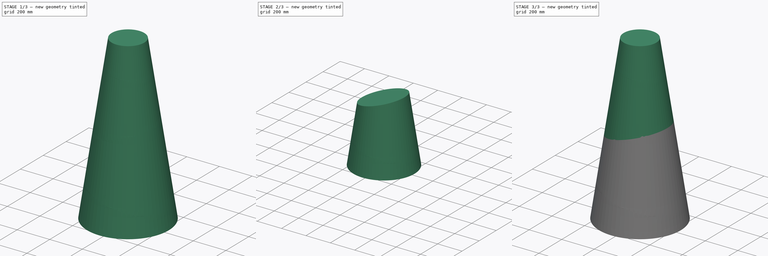
[diagram: build sequence overview — one tinted view per stage of 3, left to right]
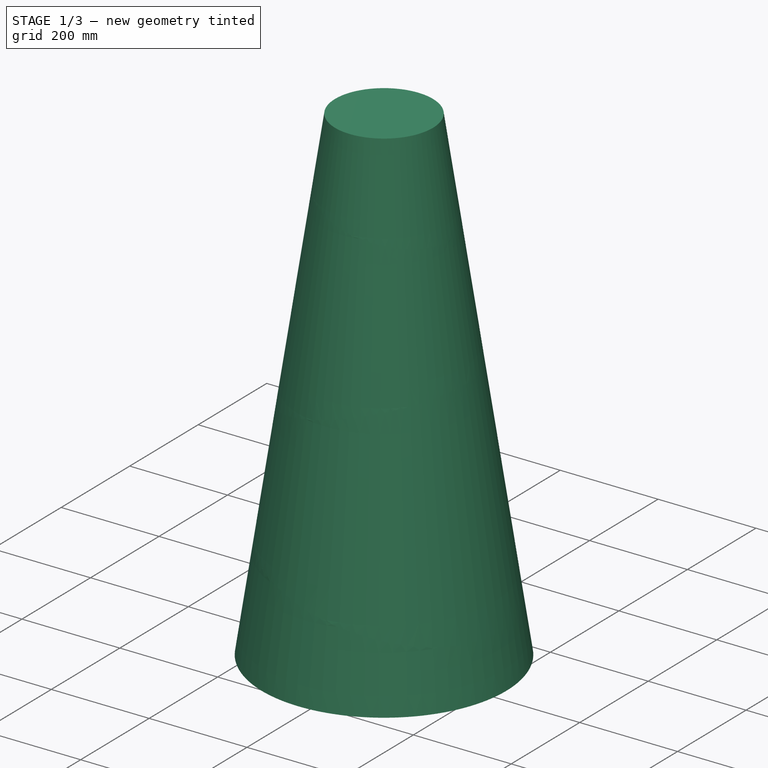
[diagram: stage 1 of 3 — iso view after this stage's code; geometry added in this stage tinted green]
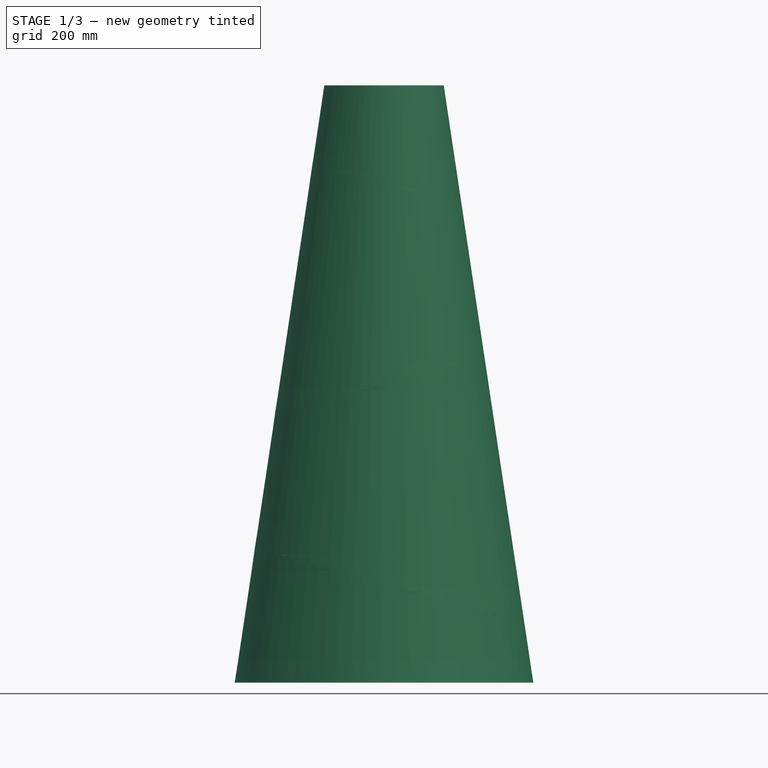
[diagram: stage 1 of 3 — front view after this stage's code; geometry added in this stage tinted green]
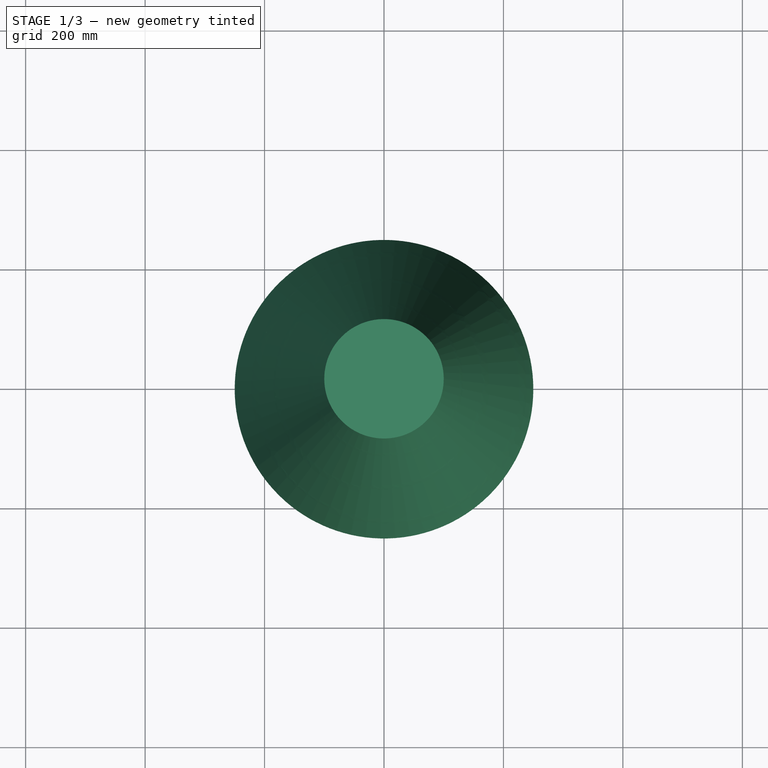
[diagram: stage 1 of 3 — top view after this stage's code; geometry added in this stage tinted green]
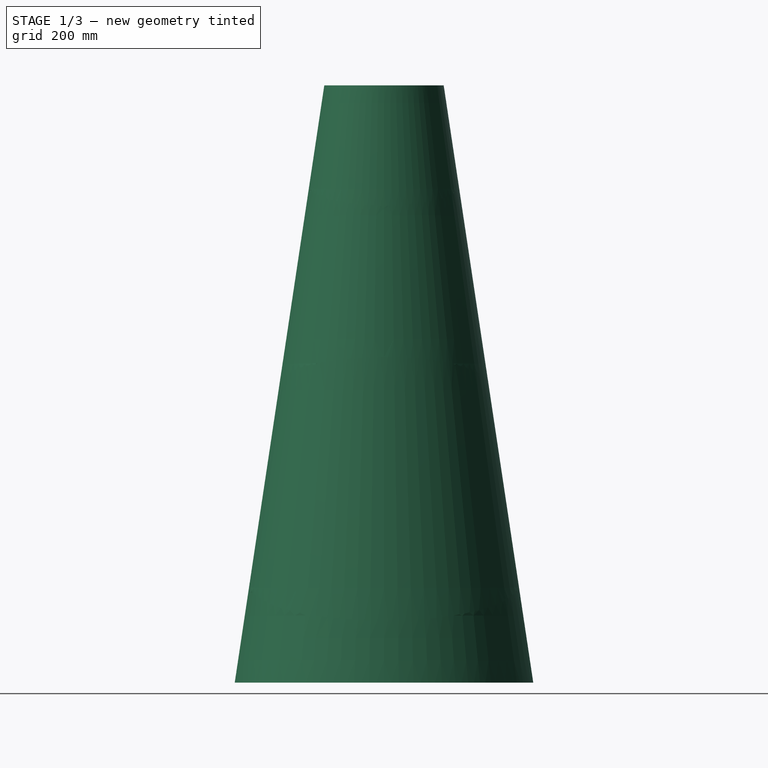
[diagram: stage 1 of 3 — right view after this stage's code; geometry added in this stage tinted green]
FCSTD DOCUMENT  (FreeCAD 0.21R32662 (Git))
Label: 253 - Conical Curve
License: All rights reserved
LicenseURL: http://en.wikipedia.org/wiki/All_rights_reserved
objects: PartDesign::CoordinateSystem×11, Part::FeaturePython×5, App::Part×5, App::DocumentObjectGroup×4, Part::Feature×4, App::Link×4, Part::Cone×1, Sketcher::SketchObject×1, PartDesign::Body×1, Part::Extrusion×1, App::FeaturePython×1
note: 24 computed .brp shape members not serialized (recipe doc carries the construction recipe); baked Part::Feature solids carry a one-line shape summary decoded from their .brp

FEATURE [Part::Cone] Cone
  Angle = 360
  AttacherType = Attacher::AttachEngine3D
  Height = 1000
  Radius1 = 250
  Radius2 = 100
FEATURE [Sketcher::SketchObject] Sketch
  FullyConstrained = true
  MapMode = 5
  Placement = pos=(0,0,0) rot=(1,0,0;1.5708rad)
  Support = -> [XZ_Plane]
  sketch-geometry (5):
    g0: LineSegment StartX=0 StartY=0 StartZ=0 EndX=622.008 EndY=0 EndZ=0
    g1: LineSegment StartX=622.008 StartY=0 StartZ=0 EndX=-622.008 EndY=333.333 EndZ=0
    g2: LineSegment StartX=-622.008 StartY=333.333 StartZ=0 EndX=622.008 EndY=666.667 EndZ=0
    g3: LineSegment StartX=622.008 StartY=666.667 StartZ=0 EndX=-622.008 EndY=1000 EndZ=0
    g4: LineSegment StartX=-622.008 StartY=1000 StartZ=0 EndX=0 EndY=1000 EndZ=0
  constraints (15):
    c: Coincident(g-1,g0)
    c: Horizontal(g0)
    c: Coincident(g0,g1)
    c: Coincident(g1,g2)
    c: Coincident(g2,g3)
    c: Coincident(g3,g4)
    c: PointOnObject(g4,g-2)
    c: Horizontal(g4)
    c: Distance(g4,g0) = 1000
    c: Equal(g4,g0)
    c: Equal(g1,g2)
    c: Equal(g2,g3)
    c: Angle(g1,g0) = 0.261799
    c: Angle(g1,g2) = 0.523599
    c: Angle(g3,g2) = 0.523599
FEATURE [PartDesign::Body] Body
  Group = -> [Sketch]
  Origin = -> Origin
FEATURE [Part::Extrusion] Extrude
  Base = -> Sketch
  Dir = (0,-1,2e-16)
  DirMode = 2
  FaceMakerClass = Part::FaceMakerBullseye
  LengthFwd = 600
  LengthRev = 0
  Solid = false
  Symmetric = true
FEATURE [Part::FeaturePython] Slice  # WARN: FeaturePython — macro-defined, semantics opaque (R4)
  Base = -> Cone
  Mode = 1
  Tolerance = 0
  Tools = -> [Extrude]
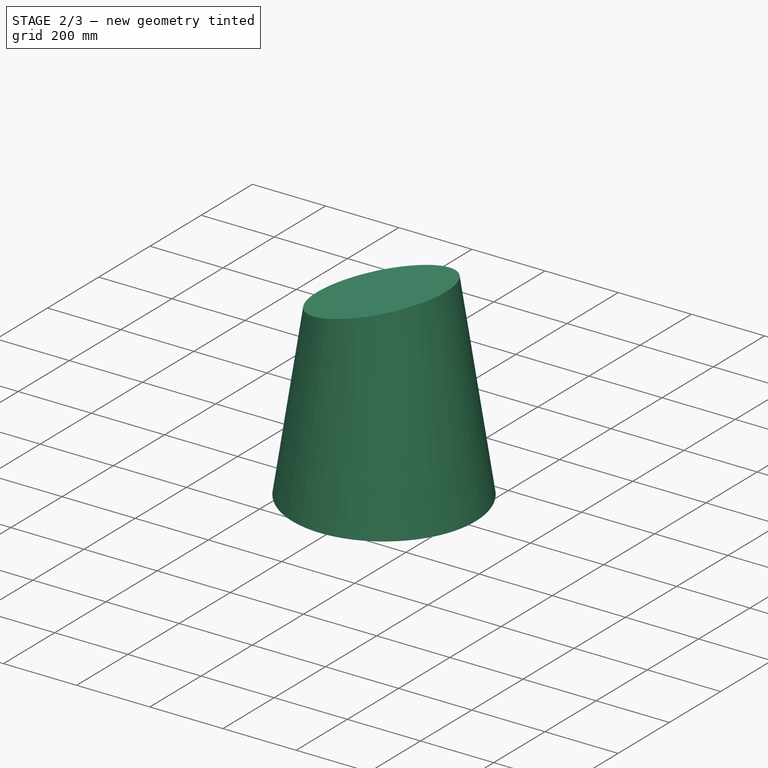
[diagram: stage 2 of 3 — iso view after this stage's code; geometry added in this stage tinted green]
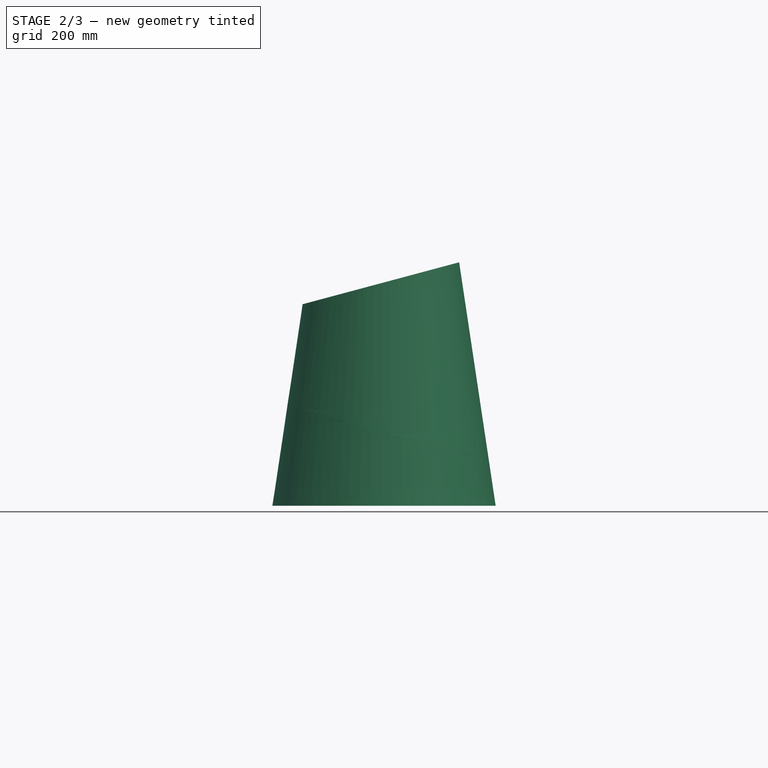
[diagram: stage 2 of 3 — front view after this stage's code; geometry added in this stage tinted green]
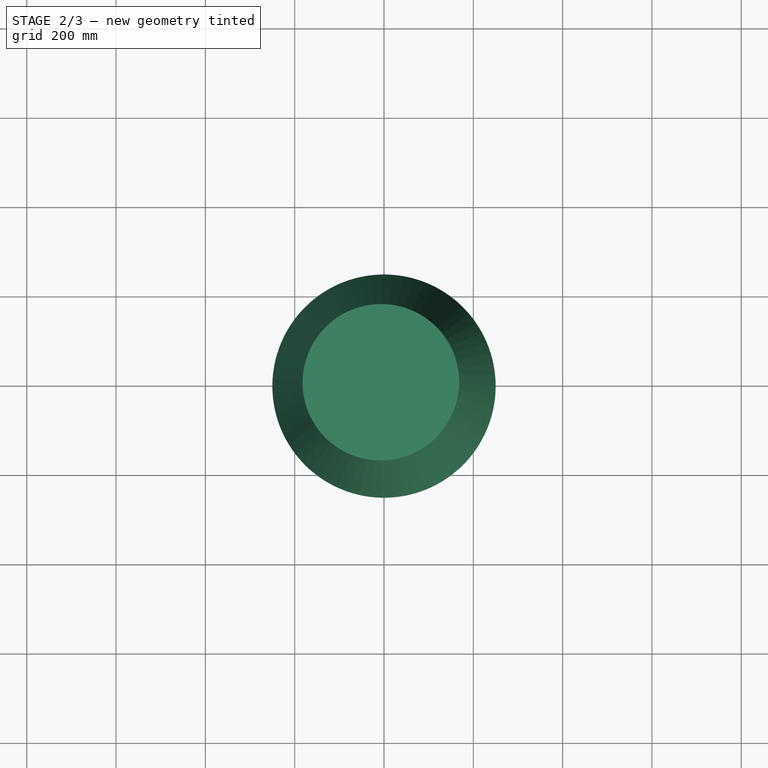
[diagram: stage 2 of 3 — top view after this stage's code; geometry added in this stage tinted green]
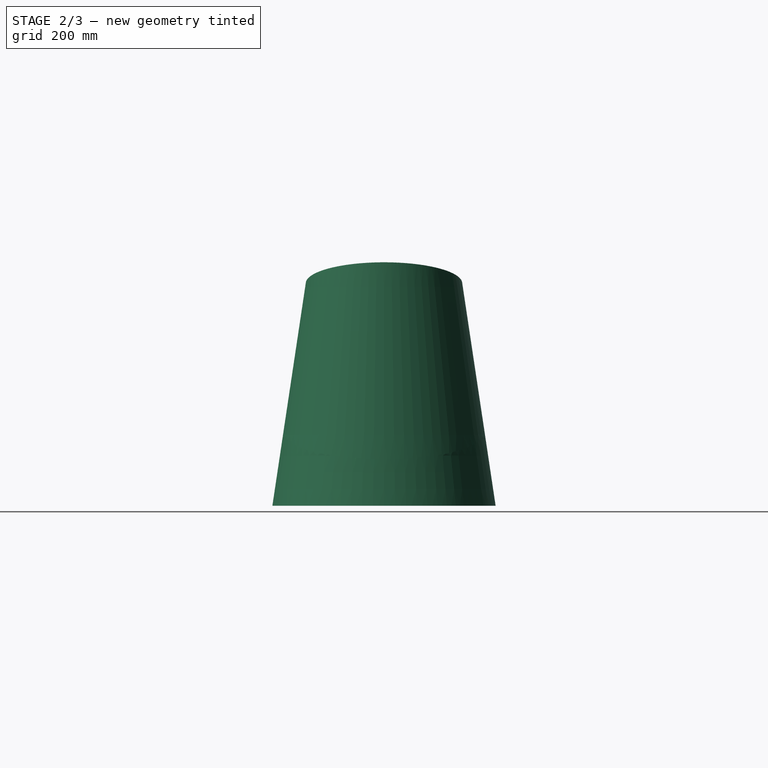
[diagram: stage 2 of 3 — right view after this stage's code; geometry added in this stage tinted green]
FEATURE [Part::FeaturePython] Slice_child2  label="Slice.2"  # WARN: FeaturePython — macro-defined, semantics opaque (R4)
  Base = -> Slice
  FilterType = 1
  Invert = false
  OverrideMaxVal = 0
  WindowFrom = 80
  WindowTo = 100
  items = 2
FEATURE [Part::FeaturePython] Slice_child3  label="Slice.3"  # WARN: FeaturePython — macro-defined, semantics opaque (R4)
  Base = -> Slice
  FilterType = 1
  Invert = false
  OverrideMaxVal = 0
  WindowFrom = 80
  WindowTo = 100
  items = 3
FEATURE [App::DocumentObjectGroup] GrExplode_Slice  label="Exploded Slice"
  Group = -> [Slice_child0,Slice_child1,Slice_child2,Slice_child3]
FEATURE [Part::Feature] Slice_child004  label="Slice.004"
  shape: bbox 500 x 500 x 224.9 mm, 3 faces (baked)
FEATURE [Part::Feature] Slice_child005  label="Slice.005"
  shape: bbox 468.8 x 468.8 x 441.2 mm, 3 faces (baked)
FEATURE [Part::Feature] Slice_child006  label="Slice.006"
  shape: bbox 364.7 x 364.7 x 415.1 mm, 3 faces (baked)
FEATURE [Part::Feature] Slice_child007  label="Slice.007"
  shape: bbox 260.5 x 260.5 x 201.6 mm, 3 faces (baked)
FEATURE [PartDesign::CoordinateSystem] LCS_Origin
  AttacherType = Attacher::AttachEngine3D
  MapMode = 2
  Support = -> [X_Axis001]
FEATURE [App::DocumentObjectGroup] Constraints
FEATURE [App::FeaturePython] Variables  # WARN: FeaturePython — macro-defined, semantics opaque (R4)
  Type = App::PropertyContainer
  move = 180
FEATURE [App::DocumentObjectGroup] Configurations
FEATURE [PartDesign::CoordinateSystem] LCS_0
  AttacherType = Attacher::AttachEngine3D
  MapMode = 2
  Support = -> [X_Axis002]
FEATURE [PartDesign::CoordinateSystem] LCS_001
  AttacherType = Attacher::AttachEngine3D
  MapMode = 2
  Support = -> [X_Axis003]
FEATURE [PartDesign::CoordinateSystem] LCS_002
  AttacherType = Attacher::AttachEngine3D
  MapMode = 2
  Support = -> [X_Axis004]
FEATURE [PartDesign::CoordinateSystem] LCS_003
  AttacherType = Attacher::AttachEngine3D
  MapMode = 2
  Support = -> [X_Axis005]
FEATURE [PartDesign::CoordinateSystem] LCS_1
  AttacherType = Attacher::AttachEngine3D
  MapMode = 2
  Placement = pos=(9.05792,7.5e-15,164.24) rot=(0.991445,0,-0.130526;3.14159rad)
  Support = -> [Slice_child004]
FEATURE [App::Part] Part
  Group = -> [LCS_0,Slice_child004,LCS_1]
  Origin = -> Origin002
FEATURE [PartDesign::CoordinateSystem] LCS_2
  AttacherType = Attacher::AttachEngine3D
  AttachmentOffset = pos=(0,0,0) rot=(0,0,1;3.14159rad)
  MapMode = 2
  Placement = pos=(9.05792,7.5e-15,164.24) rot=(0,-1,0;2.87979rad)
  Support = -> [Slice_child005]
  expr: .AttachmentOffset.Rotation.Angle = Variables.move
FEATURE [PartDesign::CoordinateSystem] LCS_3
  AttacherType = Attacher::AttachEngine3D
  MapMode = 2
  Placement = pos=(-7.04505,5.8e-15,498.112) rot=(-0.130526,0,0.991445;3.14159rad)
  Support = -> [Slice_child005]
FEATURE [App::Part] Part_2
  Group = -> [LCS_001,Slice_child005,LCS_2,LCS_3]
  Origin = -> Origin003
FEATURE [PartDesign::CoordinateSystem] LCS_4
  AttacherType = Attacher::AttachEngine3D
  AttachmentOffset = pos=(0,0,0) rot=(0,0,1;3.14159rad)
  MapMode = 2
  Placement = pos=(-7.04505,5.8e-15,498.112) rot=(0,1,0;6.02139rad)
  Support = -> [Slice_child006]
  expr: .AttachmentOffset.Rotation.Angle = Variables.move
FEATURE [PartDesign::CoordinateSystem] LCS_5
  AttacherType = Attacher::AttachEngine3D
  MapMode = 2
  Placement = pos=(5.03218,4.2e-15,831.985) rot=(0.991445,0,-0.130526;3.14159rad)
  Support = -> [Slice_child006]
FEATURE [App::Part] Part_3
  Group = -> [LCS_002,Slice_child006,LCS_4,LCS_5]
  Origin = -> Origin004
FEATURE [PartDesign::CoordinateSystem] LCS_6
  AttacherType = Attacher::AttachEngine3D
  AttachmentOffset = pos=(0,0,0) rot=(0,0,1;3.14159rad)
  MapMode = 2
  Placement = pos=(5.03218,4.2e-15,831.985) rot=(0,-1,0;2.87979rad)
  Support = -> [Slice_child007]
  expr: .AttachmentOffset.Rotation.Angle = Variables.move
FEATURE [App::Part] Part_4
  Group = -> [LCS_003,Slice_child007,LCS_6]
  Origin = -> Origin005
FEATURE [App::DocumentObjectGroup] Parts
  Group = -> [Body,Part,Part_2,Part_3,Part_4]
FEATURE [App::Link] Part001
  AssemblyType = Part::Link
  AttachedBy = #LCS_0
  AttachedTo = Parent Assembly#LCS_Origin
  AttachmentOffset = pos=(0,0,0) rot=(0,1,0;1.5708rad)
  LinkPlacement = pos=(0,0,0) rot=(0,1,0;1.5708rad)
  LinkedObject = -> Part
  Placement = pos=(0,0,0) rot=(0,1,0;1.5708rad)
  SolverId = Asm4EE
  expr: Placement = LCS_Origin.Placement * AttachmentOffset * LCS_0.Placement ^ -1
FEATURE [App::Link] Part_005
  AssemblyType = Part::Link
  AttachedBy = #LCS_2
  AttachedTo = Part001#LCS_1
  LinkPlacement = pos=(17.475,-4.99e-14,65.2175) rot=(0.866025,0,0.5;3.14159rad)
  LinkedObject = -> Part_2
  Placement = pos=(17.475,-4.99e-14,65.2175) rot=(0.866025,0,0.5;3.14159rad)
  SolverId = Asm4EE
  expr: Placement = Part001.Placement * LCS_1.Placement * AttachmentOffset * LCS_2.Placement ^ -1
FEATURE [App::Link] Part_006
  AssemblyType = Part::Link
  AttachedBy = #LCS_4
  AttachedTo = Part_005#LCS_3
  LinkPlacement = pos=(190.173,2.089e-13,237.916) rot=(0,-1,0;3.66519rad)
  LinkedObject = -> Part_3
  Placement = pos=(190.173,2.089e-13,237.916) rot=(0,-1,0;3.66519rad)
  SolverId = Asm4EE
  expr: Placement = Part_005.Placement * LCS_3.Placement * AttachmentOffset * LCS_4.Placement ^ -1
FEATURE [App::Link] Part_007
  AssemblyType = Part::Link
  AttachedBy = #LCS_6
  AttachedTo = Part_006#LCS_5
  LinkPlacement = pos=(596.775,-5.5e-14,346.864) rot=(-1,0,0;3.14159rad)
  LinkedObject = -> Part_4
  Placement = pos=(596.775,-5.5e-14,346.864) rot=(-1,0,0;3.14159rad)
  SolverId = Asm4EE
  expr: Placement = Part_006.Placement * LCS_5.Placement * AttachmentOffset * LCS_6.Placement ^ -1
FEATURE [App::Part] Model
  AssemblyType = Part::Link
  Group = -> [LCS_Origin,Constraints,Variables,Configurations,Part001,Part_005,Part_006,Part_007]
  Origin = -> Origin001
  Type = Assembly
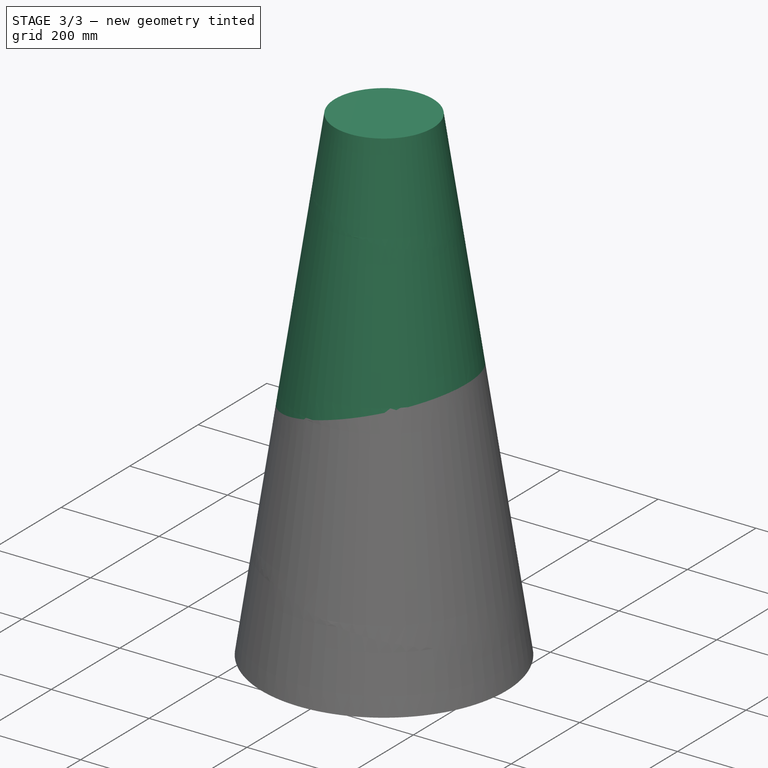
[diagram: stage 3 of 3 — iso view after this stage's code; geometry added in this stage tinted green]
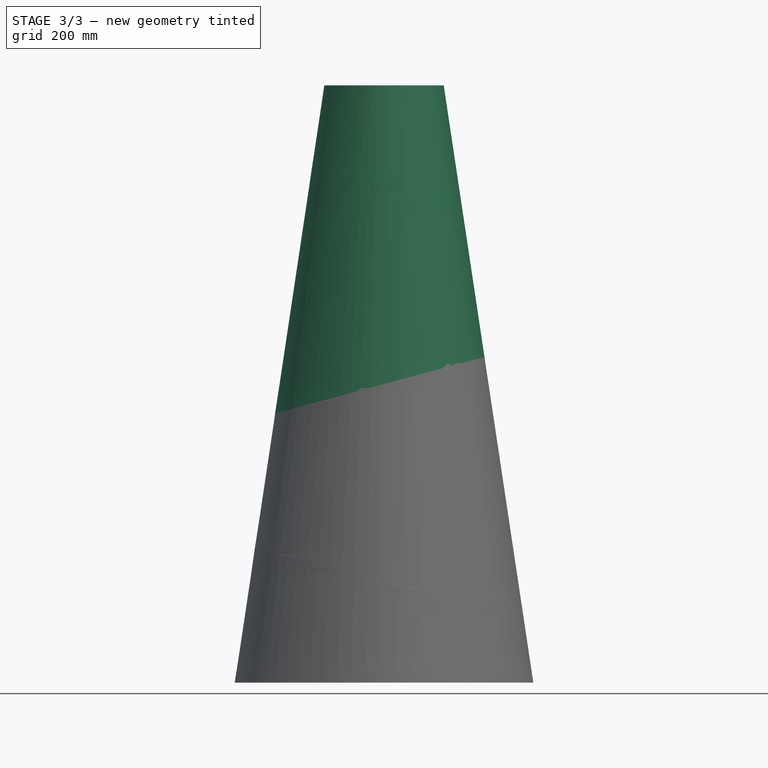
[diagram: stage 3 of 3 — front view after this stage's code; geometry added in this stage tinted green]
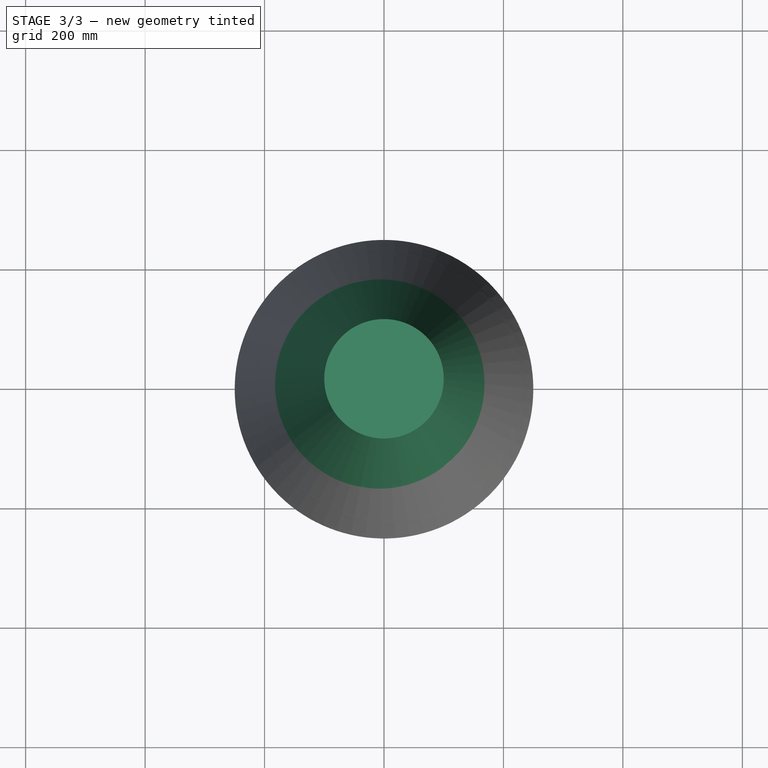
[diagram: stage 3 of 3 — top view after this stage's code; geometry added in this stage tinted green]
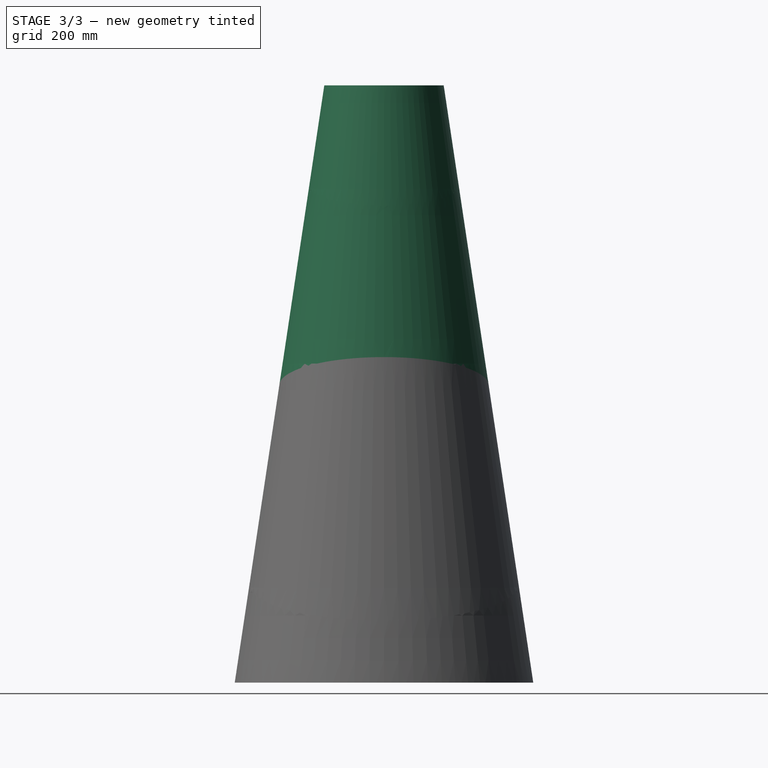
[diagram: stage 3 of 3 — right view after this stage's code; geometry added in this stage tinted green]
FEATURE [Part::FeaturePython] Slice_child0  label="Slice.0"  # WARN: FeaturePython — macro-defined, semantics opaque (R4)
  Base = -> Slice
  FilterType = 1
  Invert = false
  OverrideMaxVal = 0
  WindowFrom = 80
  WindowTo = 100
  items = 0
FEATURE [Part::FeaturePython] Slice_child1  label="Slice.1"  # WARN: FeaturePython — macro-defined, semantics opaque (R4)
  Base = -> Slice
  FilterType = 1
  Invert = false
  OverrideMaxVal = 0
  WindowFrom = 80
  WindowTo = 100
  items = 1
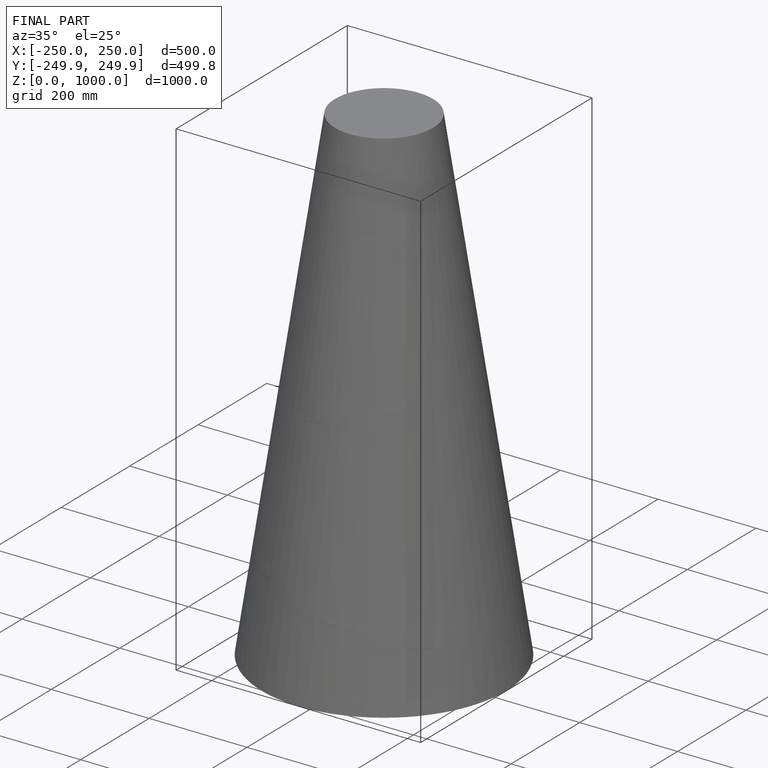
[diagram: finished part — iso view with bounding-box wireframe]
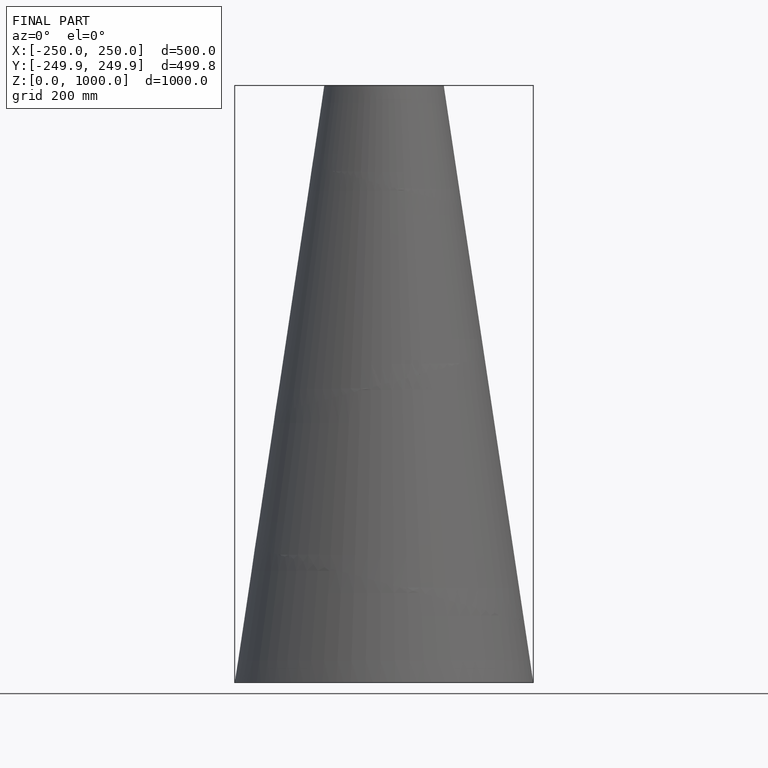
[diagram: finished part — front view with bounding-box wireframe]
